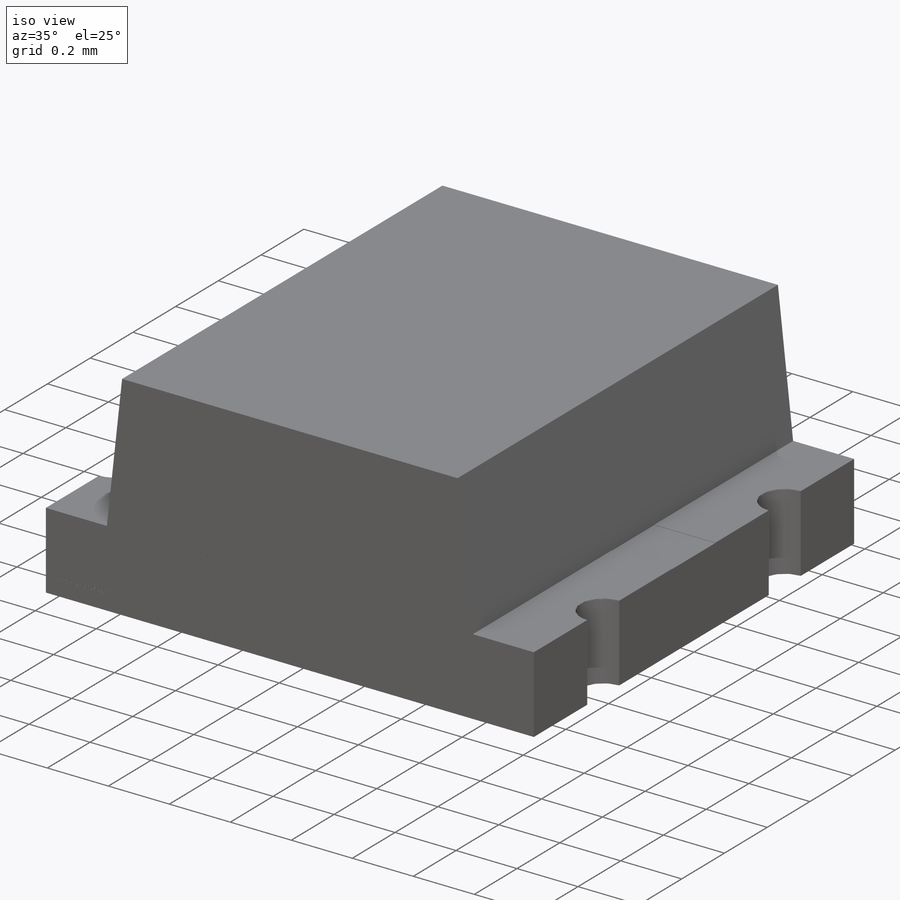
[diagram: iso view]
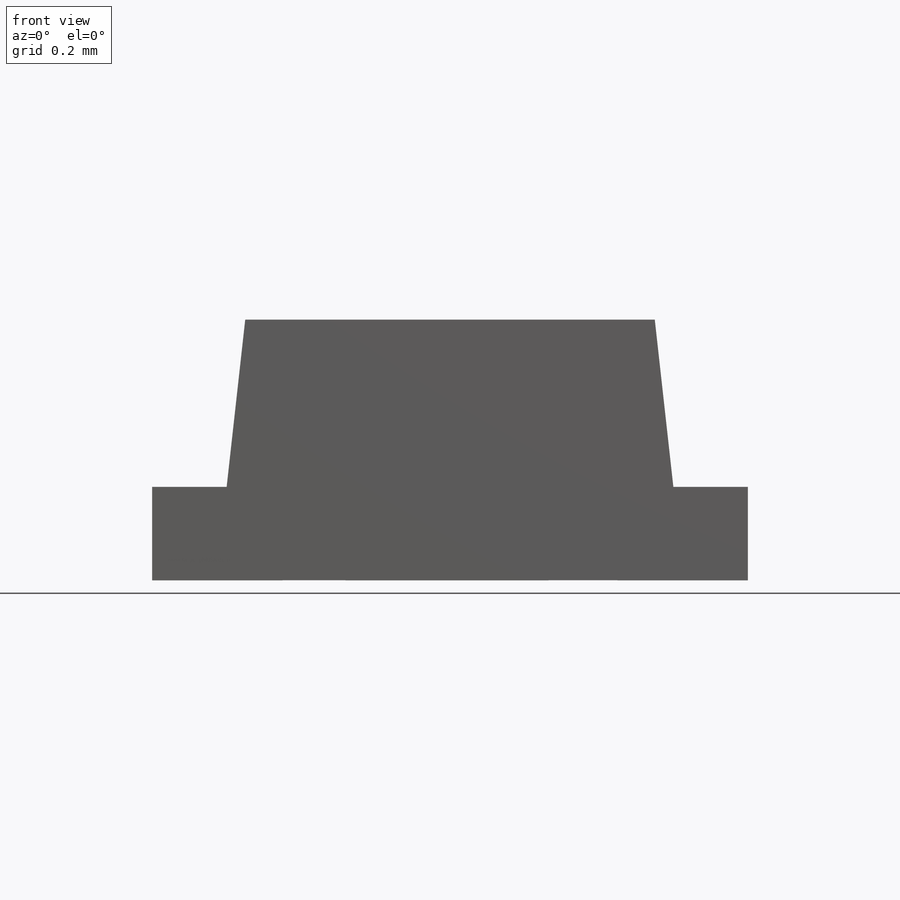
[diagram: front view]
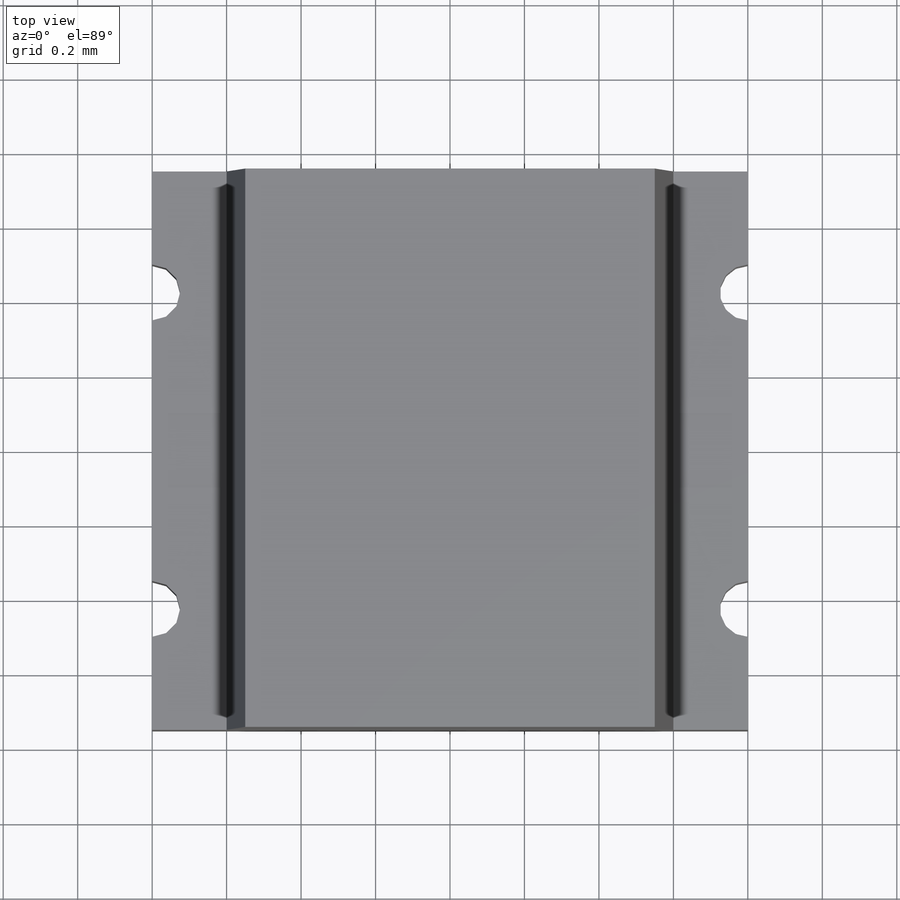
[diagram: top view]
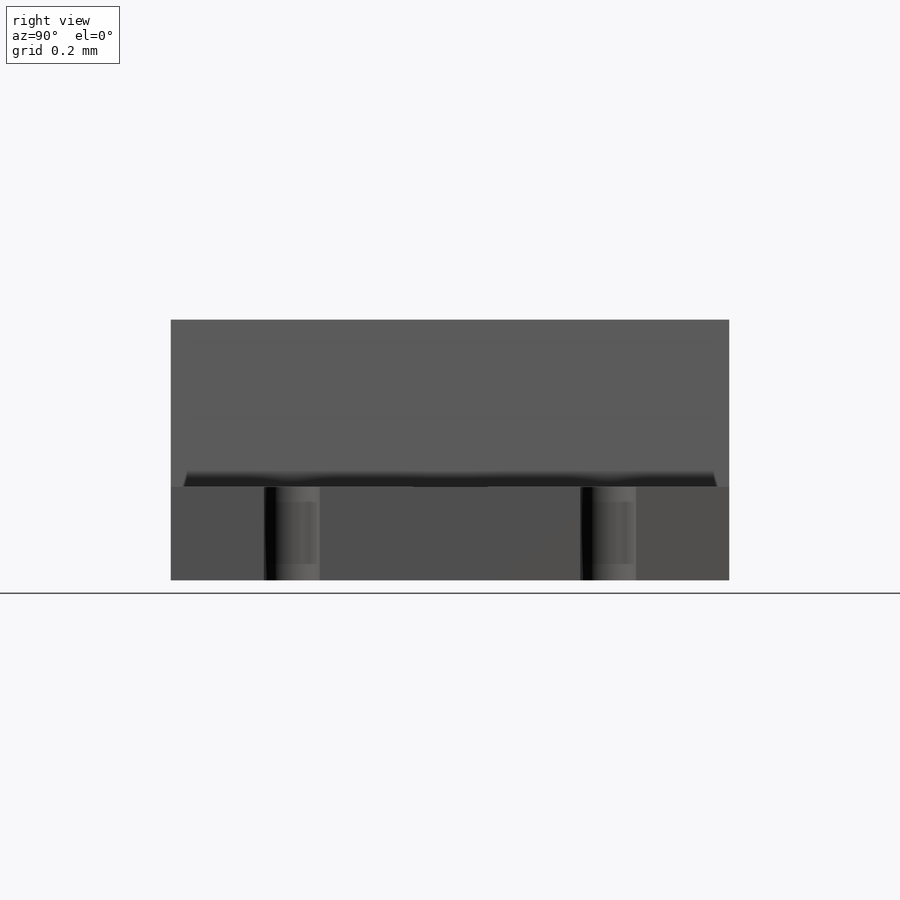
[diagram: right view]
SOLIDWORKS PART (.sldprt)
format: sldprt  version: not decoded by parser v0  size: 688,640 bytes
history: native  units: mm
features: sketch x7, extrude x5, cut_extrude x2, material x1 (+11 scaffold rows collapsed)
feature tree (26):
  scaffold x11  (default folders/planes/origin — collapsed)
  material  "Material <not specified>"
  sketch  "Sketch1"  dims[D1=0.25mm D2=1.6mm D3=1.1mm D4=1.2mm D5=0.7mm]
  extrude  "Extrude1"  Depth=1.5mm
  extrude  "Extrude2"  [1 undecoded]
  sketch  "Sketch1<3>"  dims[D1=1.5mm]
  sketch  "Sketch2"  dims[D3=0.15mm D1=0.65mm D2=0.35mm]
  extrude  "Extrude3"  Depth=0.02mm
  extrude  "Extrude4"  [1 undecoded]
  sketch  "Sketch2<3>"  dims[D1=0.01mm D2=0.0001mm]
  cut_extrude  "Cut-Extrude2"  [1 undecoded]
  sketch  "Sketch2<4>"
  sketch  "Sketch3"  dims[D1=0.25mm D2=0.05mm]
  cut_extrude  "Cut-Extrude3"  Depth=0.001mm
  sketch  "Sketch4"
  extrude  "Extrude5"  Depth=0.01mm
decode coverage: 9 of 14 modeling features carry decoded parameters
note: 3 parameter values undecoded
summary: no parameter record found for 3 features
note: suppression state not decoded; provenance and decode notes live in map.json
